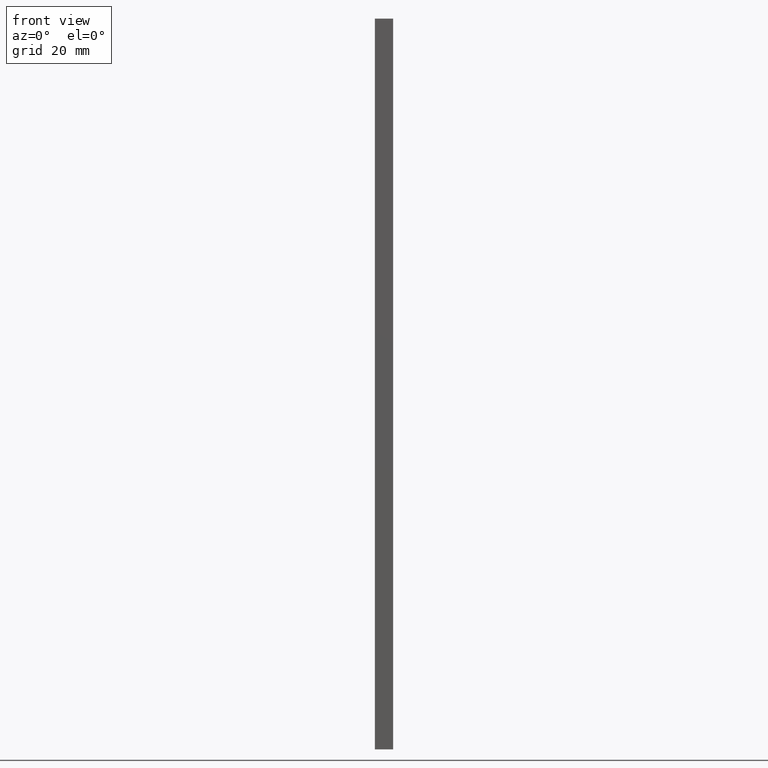
[diagram: clean part render]
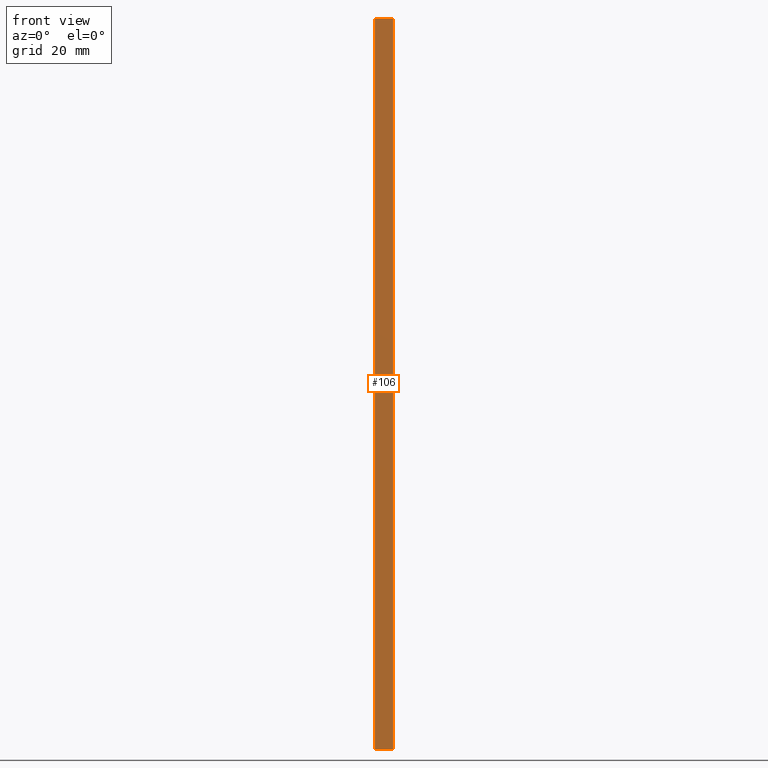
[diagram: same view with one face highlighted and labeled with its STEP entity id]
A machine part, front view. The second image highlights one B-rep face of the part: STEP entity #106.
In plain terms, the highlighted planar face has unit normal (-0, -1, 0).
Its self-contained STEP definition (entity closure, byte-faithful):
#20=FACE_OUTER_BOUND('',#26,.T.);
#26=EDGE_LOOP('',(#88,#89,#90,#91));
#29=LINE('',#169,#41);
#34=LINE('',#178,#46);
#38=LINE('',#186,#50);
#39=LINE('',#188,#51);
#41=VECTOR('',#142,10.);
#46=VECTOR('',#149,10.);
#50=VECTOR('',#157,10.);
#51=VECTOR('',#160,10.);
#52=VERTEX_POINT('',#165);
#54=VERTEX_POINT('',#168);
#56=VERTEX_POINT('',#174);
#59=VERTEX_POINT('',#184);
#61=EDGE_CURVE('',#54,#52,#29,.T.);
#66=EDGE_CURVE('',#56,#54,#34,.T.);
#70=EDGE_CURVE('',#52,#59,#38,.T.);
#71=EDGE_CURVE('',#59,#56,#39,.T.);
#88=ORIENTED_EDGE('',*,*,#71,.T.);
#89=ORIENTED_EDGE('',*,*,#66,.T.);
#90=ORIENTED_EDGE('',*,*,#61,.T.);
#91=ORIENTED_EDGE('',*,*,#70,.T.);
#100=PLANE('',#135);
#106=ADVANCED_FACE('',(#20),#100,.T.);
#135=AXIS2_PLACEMENT_3D('',#187,#158,#159);
#142=DIRECTION('',(1.,-3.70074341541719E-16,0.));
#149=DIRECTION('',(0.,0.,-1.));
#157=DIRECTION('',(0.,0.,1.));
#158=DIRECTION('center_axis',(-3.70074341541719E-16,-1.,0.));
#159=DIRECTION('ref_axis',(0.,0.,-1.));
#160=DIRECTION('',(-1.,3.70074341541719E-16,0.));
#165=CARTESIAN_POINT('',(3.,-1.11022302462516E-15,-60.));
#168=CARTESIAN_POINT('',(1.94289029309402E-15,0.,-60.));
#169=CARTESIAN_POINT('',(3.,-1.11022302462516E-15,-60.));
#174=CARTESIAN_POINT('',(1.94289029309402E-15,0.,60.));
#178=CARTESIAN_POINT('',(1.94289029309402E-15,0.,0.));
#184=CARTESIAN_POINT('',(3.,-1.11022302462516E-15,60.));
#186=CARTESIAN_POINT('',(3.,-1.11022302462516E-15,0.));
#187=CARTESIAN_POINT('Origin',(3.,-1.11022302462516E-15,0.));
#188=CARTESIAN_POINT('',(3.,-1.11022302462516E-15,60.));